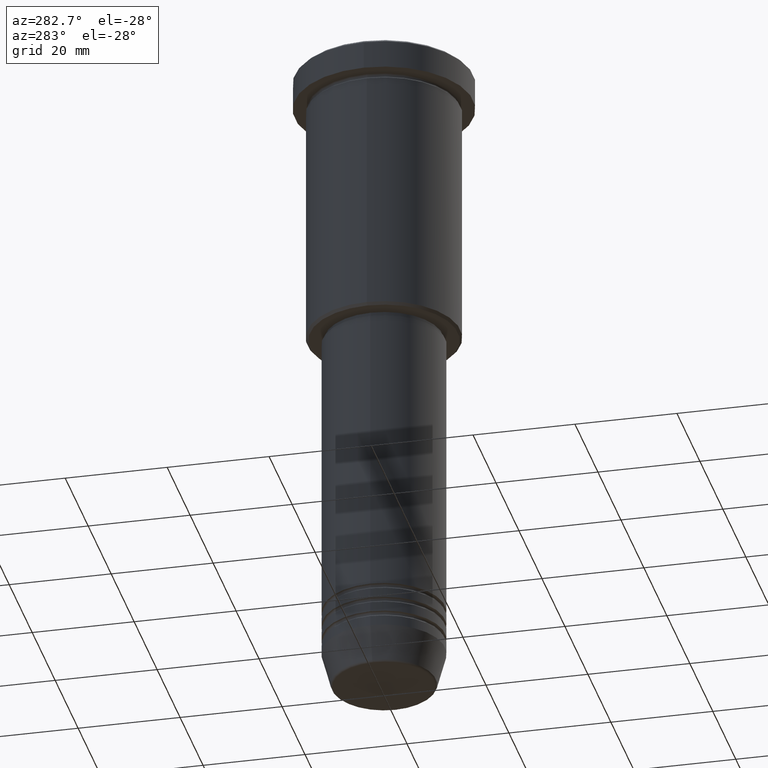
[diagram: clean part render]
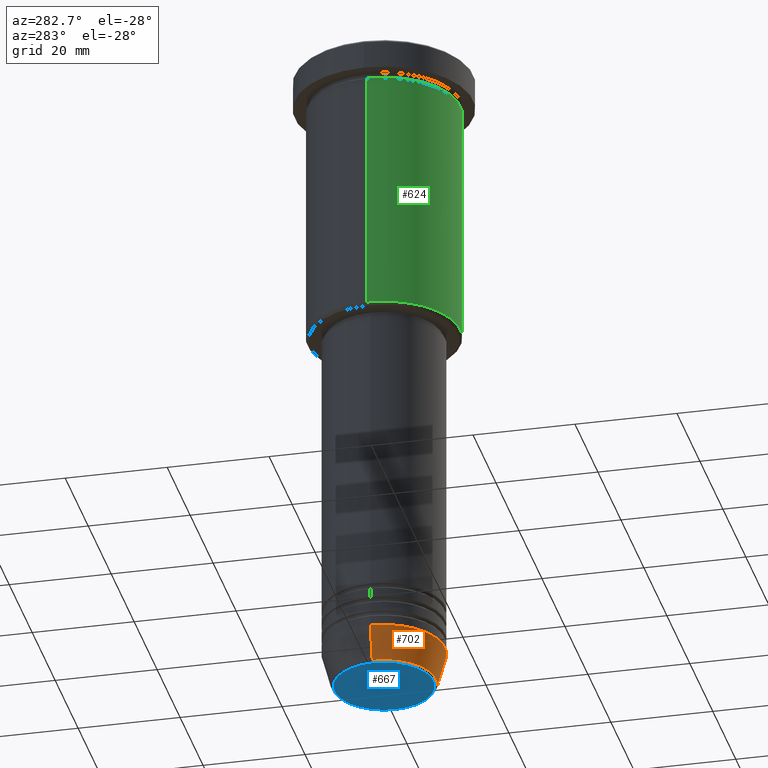
[diagram: same view with three faces highlighted in distinct colors, each labeled with its STEP entity id]
A machine part, auxiliary view with three faces highlighted in distinct colors.
Their STEP definitions:

[orange] entity #702 — the highlighted conical surface has half-angle 15 deg.
#35 = CARTESIAN_POINT ( 'NONE',  ( 12.00000000000000000, 0.000000000000000000, -124.0000000000000000 ) ) ;
#90 = DIRECTION ( 'NONE',  ( -0.2588190451025213501, 3.169619151431772337E-17, 0.9659258262890680902 ) ) ;
#133 = FACE_OUTER_BOUND ( 'NONE', #555, .T. ) ;
#204 = EDGE_CURVE ( 'NONE', #458, #894, #365, .T. ) ;
#207 = AXIS2_PLACEMENT_3D ( 'NONE', #492, #832, #377 ) ;
#246 = CIRCLE ( 'NONE', #386, 12.00000000000000000 ) ;
#293 = DIRECTION ( 'NONE',  ( 1.000000000000000000, 0.000000000000000000, 0.000000000000000000 ) ) ;
#365 = LINE ( 'NONE', #35, #597 ) ;
#366 = VECTOR ( 'NONE', #90, 1000.000000000000000 ) ;
#373 = CARTESIAN_POINT ( 'NONE',  ( -12.00000000000000000, 1.469576158976823947E-15, -124.0000000000000000 ) ) ;
#375 = CARTESIAN_POINT ( 'NONE',  ( 0.000000000000000000, 0.000000000000000000, -124.0000000000000000 ) ) ;
#377 = DIRECTION ( 'NONE',  ( 1.000000000000000000, 0.000000000000000000, 0.000000000000000000 ) ) ;
#386 = AXIS2_PLACEMENT_3D ( 'NONE', #375, #934, #293 ) ;
#424 = CONICAL_SURFACE ( 'NONE', #619, 12.00000000000000000, 0.2617993877991500740 ) ;
#449 = VERTEX_POINT ( 'NONE', #373 ) ;
#455 = EDGE_CURVE ( 'NONE', #576, #449, #720, .T. ) ;
#458 = VERTEX_POINT ( 'NONE', #1076 ) ;
#469 = CARTESIAN_POINT ( 'NONE',  ( 12.00000000000000000, 0.000000000000000000, -124.0000000000000000 ) ) ;
#492 = CARTESIAN_POINT ( 'NONE',  ( 0.000000000000000000, 0.000000000000000000, -130.6294095225512422 ) ) ;
#545 = ORIENTED_EDGE ( 'NONE', *, *, #551, .T. ) ;
#551 = EDGE_CURVE ( 'NONE', #576, #458, #781, .T. ) ;
#555 = EDGE_LOOP ( 'NONE', ( #830, #545, #783, #606 ) ) ;
#576 = VERTEX_POINT ( 'NONE', #753 ) ;
#595 = CARTESIAN_POINT ( 'NONE',  ( 0.000000000000000000, 0.000000000000000000, -124.0000000000000000 ) ) ;
#597 = VECTOR ( 'NONE', #733, 1000.000000000000000 ) ;
#606 = ORIENTED_EDGE ( 'NONE', *, *, #1085, .F. ) ;
#619 = AXIS2_PLACEMENT_3D ( 'NONE', #595, #774, #956 ) ;
#702 = ADVANCED_FACE ( 'NONE', ( #133 ), #424, .T. ) ;
#720 = LINE ( 'NONE', #736, #366 ) ;
#733 = DIRECTION ( 'NONE',  ( 0.2588190451025213501, 0.000000000000000000, 0.9659258262890680902 ) ) ;
#736 = CARTESIAN_POINT ( 'NONE',  ( -12.00000000000000000, 1.469576158976823947E-15, -124.0000000000000000 ) ) ;
#753 = CARTESIAN_POINT ( 'NONE',  ( -10.22365507213718949, 1.360806402472382744E-15, -130.6294095225512422 ) ) ;
#774 = DIRECTION ( 'NONE',  ( -0.000000000000000000, -0.000000000000000000, 1.000000000000000000 ) ) ;
#781 = CIRCLE ( 'NONE', #207, 10.22365507213718949 ) ;
#783 = ORIENTED_EDGE ( 'NONE', *, *, #204, .T. ) ;
#830 = ORIENTED_EDGE ( 'NONE', *, *, #455, .F. ) ;
#832 = DIRECTION ( 'NONE',  ( -0.000000000000000000, -0.000000000000000000, 1.000000000000000000 ) ) ;
#894 = VERTEX_POINT ( 'NONE', #469 ) ;
#934 = DIRECTION ( 'NONE',  ( -0.000000000000000000, -0.000000000000000000, 1.000000000000000000 ) ) ;
#956 = DIRECTION ( 'NONE',  ( 1.000000000000000000, 0.000000000000000000, 0.000000000000000000 ) ) ;
#1076 = CARTESIAN_POINT ( 'NONE',  ( 10.22365507213718949, 0.000000000000000000, -130.6294095225512422 ) ) ;
#1085 = EDGE_CURVE ( 'NONE', #449, #894, #246, .T. ) ;

[blue] entity #667 — the highlighted planar face has unit normal (0, -0, 1).
#38 = PLANE ( 'NONE',  #815 ) ;
#57 = FACE_OUTER_BOUND ( 'NONE', #1128, .T. ) ;
#114 = EDGE_CURVE ( 'NONE', #546, #618, #1009, .T. ) ;
#130 = DIRECTION ( 'NONE',  ( 0.000000000000000000, -0.000000000000000000, 1.000000000000000000 ) ) ;
#206 = ORIENTED_EDGE ( 'NONE', *, *, #652, .T. ) ;
#385 = ORIENTED_EDGE ( 'NONE', *, *, #114, .T. ) ;
#398 = CARTESIAN_POINT ( 'NONE',  ( -9.740692158992654726, 1.222463696683474604E-15, -131.0000000000000000 ) ) ;
#408 = CARTESIAN_POINT ( 'NONE',  ( 9.740692158992654726, 0.000000000000000000, -131.0000000000000000 ) ) ;
#546 = VERTEX_POINT ( 'NONE', #398 ) ;
#602 = DIRECTION ( 'NONE',  ( 0.000000000000000000, 0.000000000000000000, -1.000000000000000000 ) ) ;
#618 = VERTEX_POINT ( 'NONE', #408 ) ;
#652 = EDGE_CURVE ( 'NONE', #618, #546, #1176, .T. ) ;
#667 = ADVANCED_FACE ( 'NONE', ( #57 ), #38, .F. ) ;
#676 = AXIS2_PLACEMENT_3D ( 'NONE', #1129, #602, #685 ) ;
#685 = DIRECTION ( 'NONE',  ( 1.000000000000000000, 0.000000000000000000, 0.000000000000000000 ) ) ;
#815 = AXIS2_PLACEMENT_3D ( 'NONE', #1038, #130, #967 ) ;
#967 = DIRECTION ( 'NONE',  ( 1.000000000000000000, 0.000000000000000000, 0.000000000000000000 ) ) ;
#973 = CARTESIAN_POINT ( 'NONE',  ( 0.000000000000000000, 0.000000000000000000, -131.0000000000000000 ) ) ;
#1009 = CIRCLE ( 'NONE', #1118, 9.740692158992654726 ) ;
#1038 = CARTESIAN_POINT ( 'NONE',  ( 0.000000000000000000, 0.000000000000000000, -131.0000000000000000 ) ) ;
#1069 = DIRECTION ( 'NONE',  ( 0.000000000000000000, 0.000000000000000000, -1.000000000000000000 ) ) ;
#1118 = AXIS2_PLACEMENT_3D ( 'NONE', #973, #1069, #1149 ) ;
#1128 = EDGE_LOOP ( 'NONE', ( #206, #385 ) ) ;
#1129 = CARTESIAN_POINT ( 'NONE',  ( 0.000000000000000000, 0.000000000000000000, -131.0000000000000000 ) ) ;
#1149 = DIRECTION ( 'NONE',  ( 1.000000000000000000, 0.000000000000000000, 0.000000000000000000 ) ) ;
#1176 = CIRCLE ( 'NONE', #676, 9.740692158992654726 ) ;

[green] entity #624 — the highlighted cylindrical surface (partial cylindrical patch) has radius 15 mm, axis along (-0, -0, 1).
#29 = DIRECTION ( 'NONE',  ( -0.000000000000000000, -0.000000000000000000, 1.000000000000000000 ) ) ;
#73 = DIRECTION ( 'NONE',  ( -0.000000000000000000, -0.000000000000000000, 1.000000000000000000 ) ) ;
#89 = CARTESIAN_POINT ( 'NONE',  ( -15.00000000000000000, 1.836970198721029589E-15, 0.000000000000000000 ) ) ;
#119 = VERTEX_POINT ( 'NONE', #1063 ) ;
#132 = VERTEX_POINT ( 'NONE', #613 ) ;
#189 = EDGE_CURVE ( 'NONE', #592, #119, #481, .T. ) ;
#229 = VERTEX_POINT ( 'NONE', #1004 ) ;
#239 = EDGE_LOOP ( 'NONE', ( #888, #575, #1160, #1002 ) ) ;
#267 = CIRCLE ( 'NONE', #541, 15.00000000000000000 ) ;
#281 = DIRECTION ( 'NONE',  ( -1.000000000000000000, 0.000000000000000000, 0.000000000000000000 ) ) ;
#334 = CYLINDRICAL_SURFACE ( 'NONE', #730, 15.00000000000000000 ) ;
#368 = VECTOR ( 'NONE', #73, 1000.000000000000000 ) ;
#371 = DIRECTION ( 'NONE',  ( 1.000000000000000000, 0.000000000000000000, 0.000000000000000000 ) ) ;
#481 = CIRCLE ( 'NONE', #893, 15.00000000000000000 ) ;
#488 = LINE ( 'NONE', #89, #583 ) ;
#508 = DIRECTION ( 'NONE',  ( 1.000000000000000000, 0.000000000000000000, 0.000000000000000000 ) ) ;
#541 = AXIS2_PLACEMENT_3D ( 'NONE', #853, #831, #281 ) ;
#575 = ORIENTED_EDGE ( 'NONE', *, *, #804, .T. ) ;
#583 = VECTOR ( 'NONE', #29, 1000.000000000000000 ) ;
#592 = VERTEX_POINT ( 'NONE', #757 ) ;
#607 = CARTESIAN_POINT ( 'NONE',  ( 0.000000000000000000, 0.000000000000000000, 0.000000000000000000 ) ) ;
#613 = CARTESIAN_POINT ( 'NONE',  ( -15.00000000000000000, 1.836970198721029589E-15, -55.49999999999997868 ) ) ;
#624 = ADVANCED_FACE ( 'NONE', ( #697 ), #334, .T. ) ;
#697 = FACE_OUTER_BOUND ( 'NONE', #239, .T. ) ;
#715 = LINE ( 'NONE', #899, #368 ) ;
#730 = AXIS2_PLACEMENT_3D ( 'NONE', #607, #1141, #508 ) ;
#757 = CARTESIAN_POINT ( 'NONE',  ( -15.00000000000000000, 1.836970198721029589E-15, -6.999999999999995559 ) ) ;
#804 = EDGE_CURVE ( 'NONE', #132, #229, #267, .T. ) ;
#831 = DIRECTION ( 'NONE',  ( -0.000000000000000000, -0.000000000000000000, 1.000000000000000000 ) ) ;
#845 = CARTESIAN_POINT ( 'NONE',  ( 0.000000000000000000, 0.000000000000000000, -6.999999999999995559 ) ) ;
#853 = CARTESIAN_POINT ( 'NONE',  ( 0.000000000000000000, 0.000000000000000000, -55.49999999999997868 ) ) ;
#888 = ORIENTED_EDGE ( 'NONE', *, *, #892, .F. ) ;
#892 = EDGE_CURVE ( 'NONE', #132, #592, #488, .T. ) ;
#893 = AXIS2_PLACEMENT_3D ( 'NONE', #845, #1172, #371 ) ;
#899 = CARTESIAN_POINT ( 'NONE',  ( 15.00000000000000000, 0.000000000000000000, 0.000000000000000000 ) ) ;
#1001 = EDGE_CURVE ( 'NONE', #229, #119, #715, .T. ) ;
#1002 = ORIENTED_EDGE ( 'NONE', *, *, #189, .F. ) ;
#1004 = CARTESIAN_POINT ( 'NONE',  ( 15.00000000000000000, 0.000000000000000000, -55.49999999999997868 ) ) ;
#1063 = CARTESIAN_POINT ( 'NONE',  ( 15.00000000000000000, 0.000000000000000000, -6.999999999999995559 ) ) ;
#1141 = DIRECTION ( 'NONE',  ( -0.000000000000000000, -0.000000000000000000, 1.000000000000000000 ) ) ;
#1160 = ORIENTED_EDGE ( 'NONE', *, *, #1001, .T. ) ;
#1172 = DIRECTION ( 'NONE',  ( -0.000000000000000000, -0.000000000000000000, 1.000000000000000000 ) ) ;